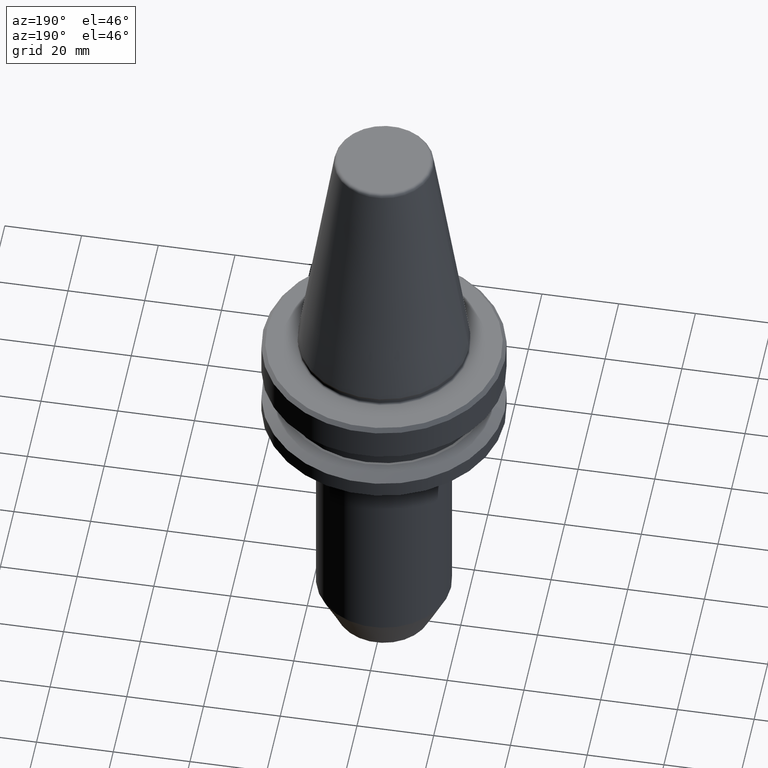
[diagram: clean part render]
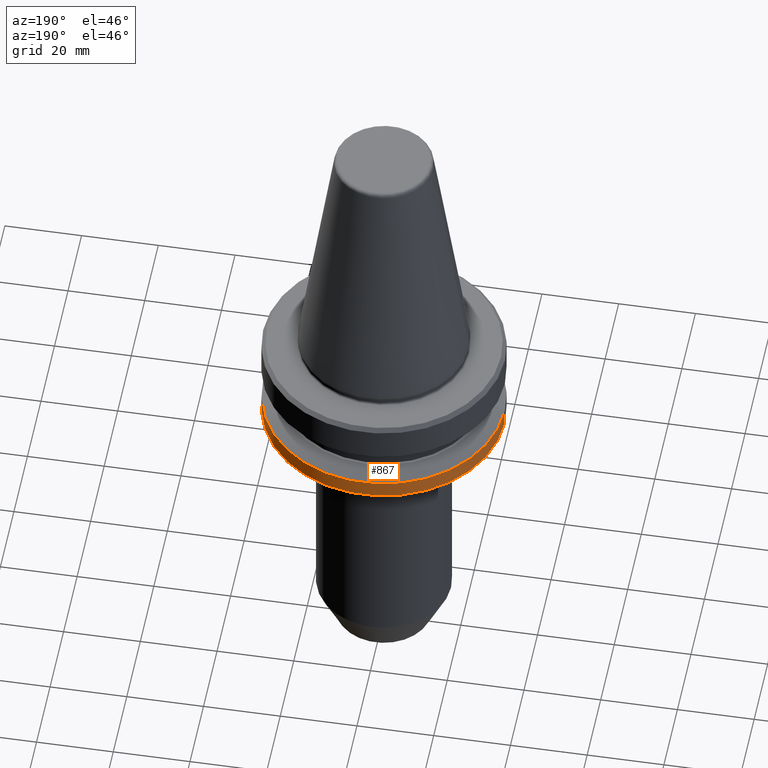
[diagram: same view with one face highlighted and labeled with its STEP entity id]
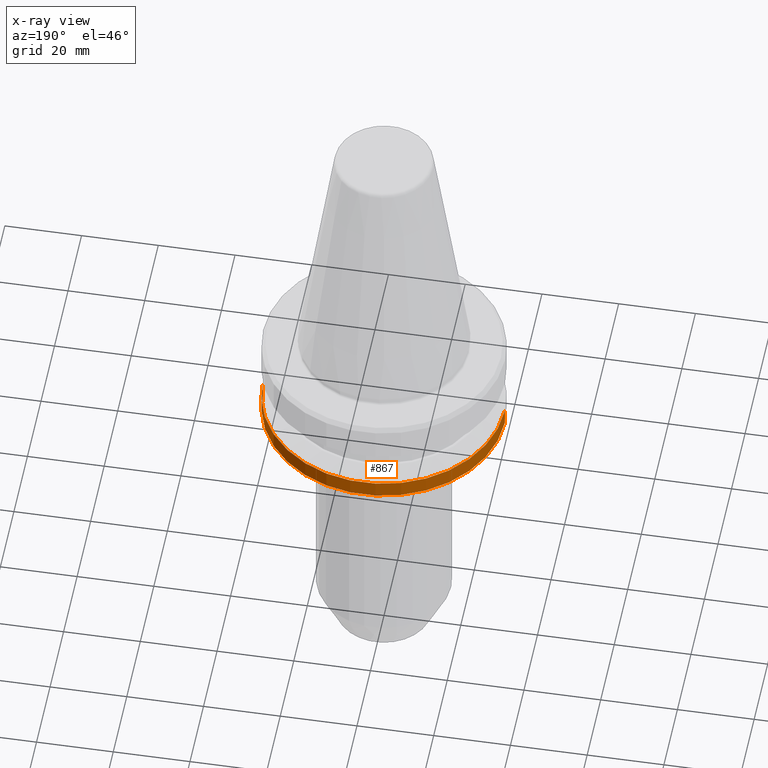
[diagram: x-ray of the same camera — body ghosted, the highlighted face saturated]
A machine part, auxiliary view. The second image highlights one B-rep face of the part: STEP entity #867.
The next image is the same camera in x-ray: the body ghosted, the highlighted face saturated — about 0% of this face is hidden behind the body in this view.
In plain terms, the highlighted cylindrical surface (partial cylindrical patch) has radius 31.5 mm, axis along (-0, -0, 1).
Its self-contained STEP definition (entity closure, byte-faithful):
#29 = LINE ( 'NONE', #313, #292 ) ;
#31 = VECTOR ( 'NONE', #946, 1000.000000000000000 ) ;
#72 = VERTEX_POINT ( 'NONE', #797 ) ;
#112 = CIRCLE ( 'NONE', #625, 31.50000000000008500 ) ;
#147 = ORIENTED_EDGE ( 'NONE', *, *, #498, .F. ) ;
#165 = CARTESIAN_POINT ( 'NONE',  ( -31.50000000000008500, 3.857637417314172900E-015, -26.00000000008749600 ) ) ;
#175 = EDGE_LOOP ( 'NONE', ( #335, #671, #582, #147 ) ) ;
#194 = CARTESIAN_POINT ( 'NONE',  ( 0.0000000000000000000, 0.0000000000000000000, -21.60014200640457500 ) ) ;
#203 = EDGE_CURVE ( 'NONE', #268, #72, #426, .T. ) ;
#239 = CARTESIAN_POINT ( 'NONE',  ( -31.50000000000008500, 3.857637417314172900E-015, 118.8520854233388800 ) ) ;
#250 = DIRECTION ( 'NONE',  ( 1.000000000000000000, 0.0000000000000000000, 0.0000000000000000000 ) ) ;
#268 = VERTEX_POINT ( 'NONE', #165 ) ;
#292 = VECTOR ( 'NONE', #935, 1000.000000000000000 ) ;
#313 = CARTESIAN_POINT ( 'NONE',  ( 31.50000000000008500, 0.0000000000000000000, 118.8520854233388800 ) ) ;
#328 = AXIS2_PLACEMENT_3D ( 'NONE', #860, #482, #355 ) ;
#335 = ORIENTED_EDGE ( 'NONE', *, *, #923, .T. ) ;
#355 = DIRECTION ( 'NONE',  ( 1.000000000000000000, 0.0000000000000000000, 0.0000000000000000000 ) ) ;
#359 = CYLINDRICAL_SURFACE ( 'NONE', #328, 31.50000000000008500 ) ;
#384 = FACE_OUTER_BOUND ( 'NONE', #175, .T. ) ;
#396 = CARTESIAN_POINT ( 'NONE',  ( 0.0000000000000000000, 0.0000000000000000000, -26.00000000008749600 ) ) ;
#426 = LINE ( 'NONE', #239, #31 ) ;
#482 = DIRECTION ( 'NONE',  ( -0.0000000000000000000, -0.0000000000000000000, 1.000000000000000000 ) ) ;
#498 = EDGE_CURVE ( 'NONE', #600, #931, #29, .T. ) ;
#528 = CARTESIAN_POINT ( 'NONE',  ( 31.50000000000008500, 0.0000000000000000000, -21.60014200640457500 ) ) ;
#582 = ORIENTED_EDGE ( 'NONE', *, *, #614, .F. ) ;
#600 = VERTEX_POINT ( 'NONE', #895 ) ;
#607 = AXIS2_PLACEMENT_3D ( 'NONE', #194, #809, #615 ) ;
#614 = EDGE_CURVE ( 'NONE', #931, #72, #974, .T. ) ;
#615 = DIRECTION ( 'NONE',  ( 1.000000000000000000, 0.0000000000000000000, 0.0000000000000000000 ) ) ;
#625 = AXIS2_PLACEMENT_3D ( 'NONE', #396, #635, #250 ) ;
#635 = DIRECTION ( 'NONE',  ( -0.0000000000000000000, -0.0000000000000000000, 1.000000000000000000 ) ) ;
#671 = ORIENTED_EDGE ( 'NONE', *, *, #203, .T. ) ;
#797 = CARTESIAN_POINT ( 'NONE',  ( -31.50000000000008500, 3.857637417314172900E-015, -21.60014200640457500 ) ) ;
#809 = DIRECTION ( 'NONE',  ( -0.0000000000000000000, -0.0000000000000000000, 1.000000000000000000 ) ) ;
#860 = CARTESIAN_POINT ( 'NONE',  ( 0.0000000000000000000, 0.0000000000000000000, 118.8520854233388800 ) ) ;
#867 = ADVANCED_FACE ( 'NONE', ( #384 ), #359, .T. ) ;
#895 = CARTESIAN_POINT ( 'NONE',  ( 31.50000000000008500, 0.0000000000000000000, -26.00000000008749600 ) ) ;
#923 = EDGE_CURVE ( 'NONE', #600, #268, #112, .T. ) ;
#931 = VERTEX_POINT ( 'NONE', #528 ) ;
#935 = DIRECTION ( 'NONE',  ( -0.0000000000000000000, -0.0000000000000000000, 1.000000000000000000 ) ) ;
#946 = DIRECTION ( 'NONE',  ( -0.0000000000000000000, -0.0000000000000000000, 1.000000000000000000 ) ) ;
#974 = CIRCLE ( 'NONE', #607, 31.50000000000008500 ) ;